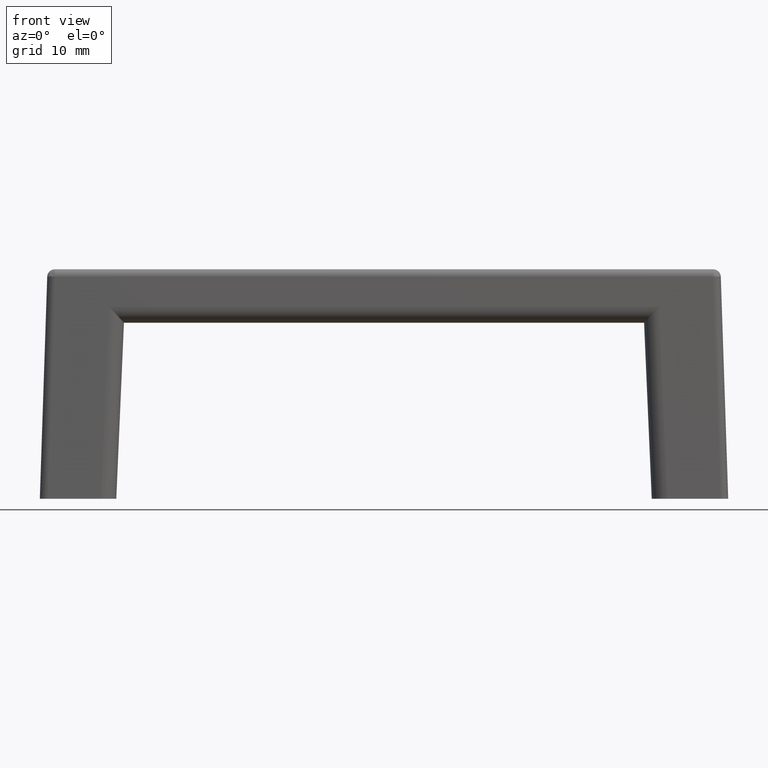
[diagram: clean part render]
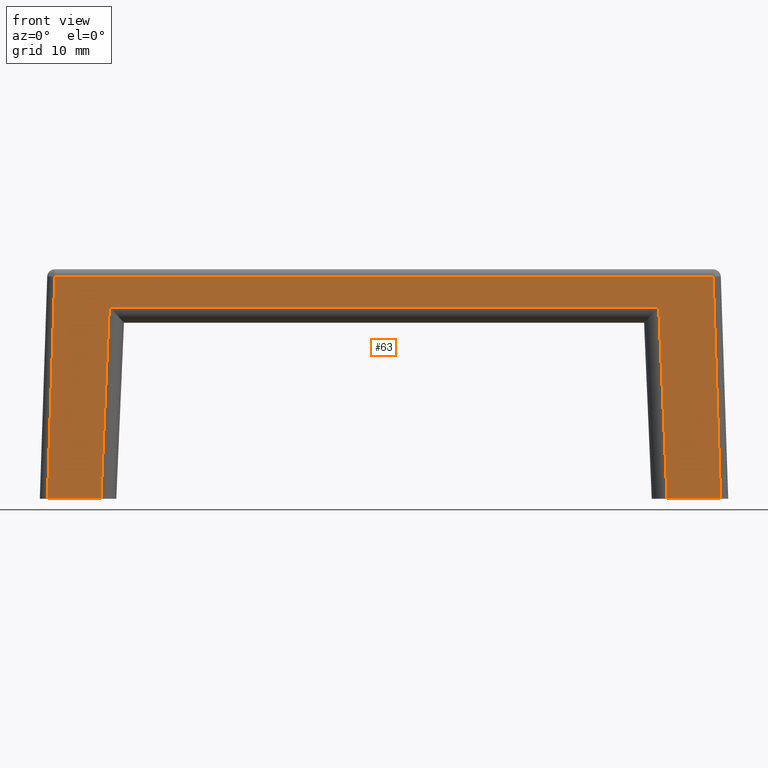
[diagram: same view with one face highlighted and labeled with its STEP entity id]
A machine part, front view. The second image highlights one B-rep face of the part: STEP entity #63.
In plain terms, the highlighted planar face has unit normal (0, -0.9994, 0.0333).
Its self-contained STEP definition (entity closure, byte-faithful):
#63=ADVANCED_FACE('',(#305),#304,.T.);
#304=PLANE('',#582);
#305=FACE_OUTER_BOUND('',#583,.T.);
#579=CARTESIAN_POINT('',(-5.28006664326E+01,-4.93518815918E+00,3.19366551391E+01));
#580=DIRECTION('',(0.00000000000E+00,-9.99444639499E-01,3.33228536849E-02));
#581=DIRECTION('',(0.00000000000E+00,-3.33228536849E-02,-9.99444639499E-01));
#582=AXIS2_PLACEMENT_3D('',#579,#580,#581);
#583=EDGE_LOOP('',(#730,#731,#732,#733,#734,#735,#736,#737));
#730=ORIENTED_EDGE('',*,*,#866,.T.);
#731=ORIENTED_EDGE('',*,*,#825,.T.);
#732=ORIENTED_EDGE('',*,*,#828,.T.);
#733=ORIENTED_EDGE('',*,*,#830,.T.);
#734=ORIENTED_EDGE('',*,*,#867,.T.);
#735=ORIENTED_EDGE('',*,*,#844,.T.);
#736=ORIENTED_EDGE('',*,*,#839,.T.);
#737=ORIENTED_EDGE('',*,*,#832,.T.);
#825=EDGE_CURVE('',#1052,#1045,#1053,.T.);
#828=EDGE_CURVE('',#1045,#1065,#1072,.T.);
#830=EDGE_CURVE('',#1065,#1078,#1085,.T.);
#832=EDGE_CURVE('',#1099,#1091,#1100,.T.);
#839=EDGE_CURVE('',#1132,#1099,#1146,.T.);
#844=EDGE_CURVE('',#1166,#1132,#1179,.T.);
#866=EDGE_CURVE('',#1091,#1052,#1324,.T.);
#867=EDGE_CURVE('',#1078,#1166,#1330,.T.);
#1045=VERTEX_POINT('',#1532);
#1052=VERTEX_POINT('',#1538);
#1053=LINE('',#1539,#1540);
#1065=VERTEX_POINT('',#1547);
#1072=LINE('',#1553,#1554);
#1078=VERTEX_POINT('',#1556);
#1085=LINE('',#1562,#1563);
#1091=VERTEX_POINT('',#1565);
#1099=VERTEX_POINT('',#1570);
#1100=LINE('',#1571,#1572);
#1132=VERTEX_POINT('',#1591);
#1146=LINE('',#1600,#1601);
#1166=VERTEX_POINT('',#1613);
#1179=LINE('',#1620,#1621);
#1324=LINE('',#1708,#1709);
#1330=LINE('',#1711,#1712);
#1532=CARTESIAN_POINT('',(-3.59149329449E+01,-5.16424368668E+00,2.50666457074E+01));
#1538=CARTESIAN_POINT('',(-3.70047871061E+01,-6.00000000000E+00,0.00000000000E+00));
#1539=CARTESIAN_POINT('',(-3.70047871061E+01,-6.00000000000E+00,0.00000000000E+00));
#1540=VECTOR('',#1541,2.51042426240E+01);
#1541=DIRECTION('',(4.34131464355E-02,3.32914370627E-02,9.98502368017E-01));
#1547=CARTESIAN_POINT('',(3.59149329449E+01,-5.16424368668E+00,2.50666457074E+01));
#1553=CARTESIAN_POINT('',(-3.59149329449E+01,-5.16424368668E+00,2.50666457074E+01));
#1554=VECTOR('',#1555,7.18298658898E+01);
#1555=DIRECTION('',(1.00000000000E+00,0.00000000000E+00,0.00000000000E+00));
#1556=CARTESIAN_POINT('',(3.70047871061E+01,-6.00000000000E+00,0.00000000000E+00));
#1562=CARTESIAN_POINT('',(3.59149329449E+01,-5.16424368668E+00,2.50666457074E+01));
#1563=VECTOR('',#1564,2.51042426240E+01);
#1564=DIRECTION('',(4.34131464355E-02,-3.32914370627E-02,-9.98502368017E-01));
#1565=CARTESIAN_POINT('',(-4.40005553605E+01,-6.00000000000E+00,0.00000000000E+00));
#1570=CARTESIAN_POINT('',(-4.30327445983E+01,-5.03198923562E+00,2.90333228537E+01));
#1571=CARTESIAN_POINT('',(-4.30327445983E+01,-5.03198923562E+00,2.90333228537E+01));
#1572=VECTOR('',#1573,2.90655730795E+01);
#1573=DIRECTION('',(-3.32974945828E-02,-3.33043756522E-02,-9.98890432138E-01));
#1591=CARTESIAN_POINT('',(4.30325445961E+01,-5.03198923562E+00,2.90333228537E+01));
#1600=CARTESIAN_POINT('',(4.30325445961E+01,-5.03198923562E+00,2.90333228537E+01));
#1601=VECTOR('',#1602,8.60652891944E+01);
#1602=DIRECTION('',(-1.00000000000E+00,0.00000000000E+00,0.00000000000E+00));
#1613=CARTESIAN_POINT('',(4.40005553605E+01,-6.00000000000E+00,0.00000000000E+00));
#1620=CARTESIAN_POINT('',(4.40005553605E+01,-6.00000000000E+00,0.00000000000E+00));
#1621=VECTOR('',#1622,2.90655797397E+01);
#1622=DIRECTION('',(-3.33043680206E-02,3.33043680206E-02,9.98890203246E-01));
#1708=CARTESIAN_POINT('',(-4.40005553605E+01,-6.00000000000E+00,0.00000000000E+00));
#1709=VECTOR('',#1710,6.99576825438E+00);
#1710=DIRECTION('',(1.00000000000E+00,0.00000000000E+00,0.00000000000E+00));
#1711=CARTESIAN_POINT('',(3.70047871061E+01,-6.00000000000E+00,0.00000000000E+00));
#1712=VECTOR('',#1713,6.99576825440E+00);
#1713=DIRECTION('',(1.00000000000E+00,0.00000000000E+00,0.00000000000E+00));